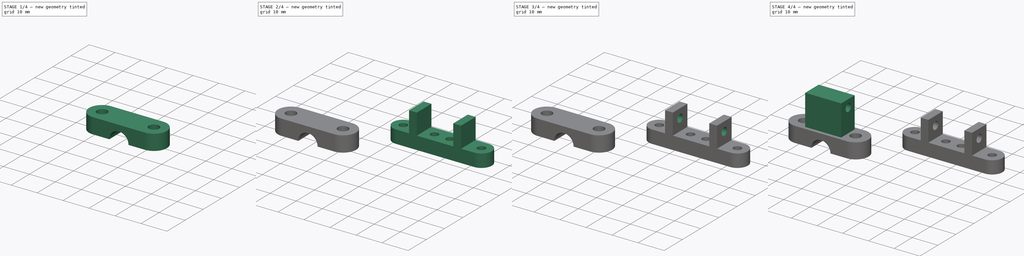
[diagram: build sequence overview — one tinted view per stage of 4, left to right]
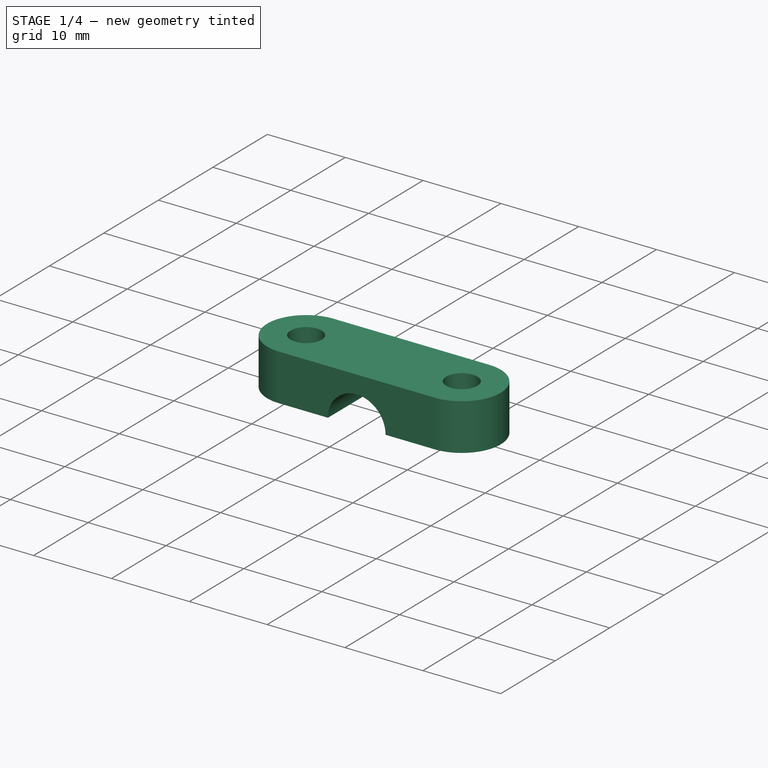
[diagram: stage 1 of 4 — iso view after this stage's code; geometry added in this stage tinted green]
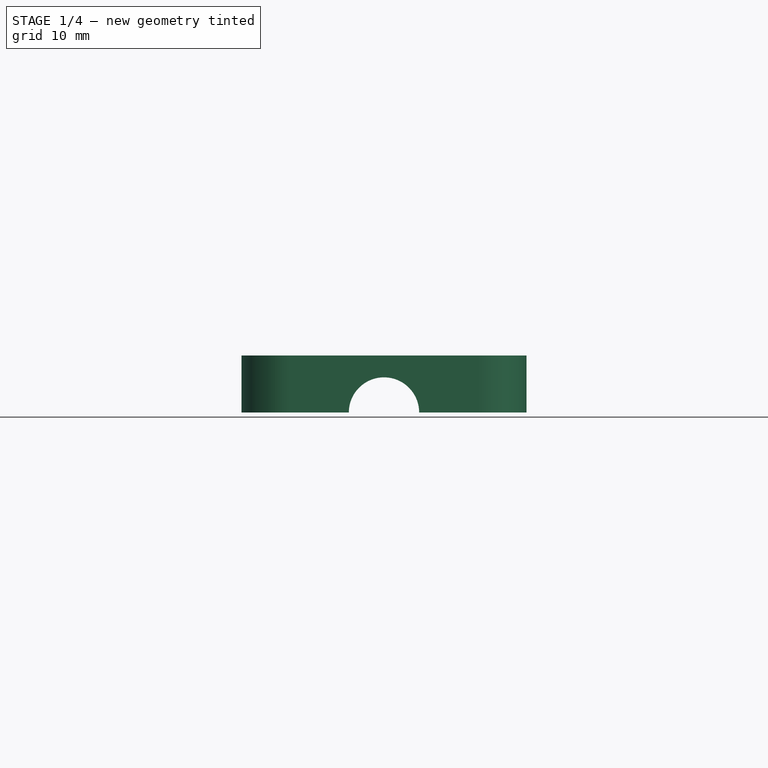
[diagram: stage 1 of 4 — front view after this stage's code; geometry added in this stage tinted green]
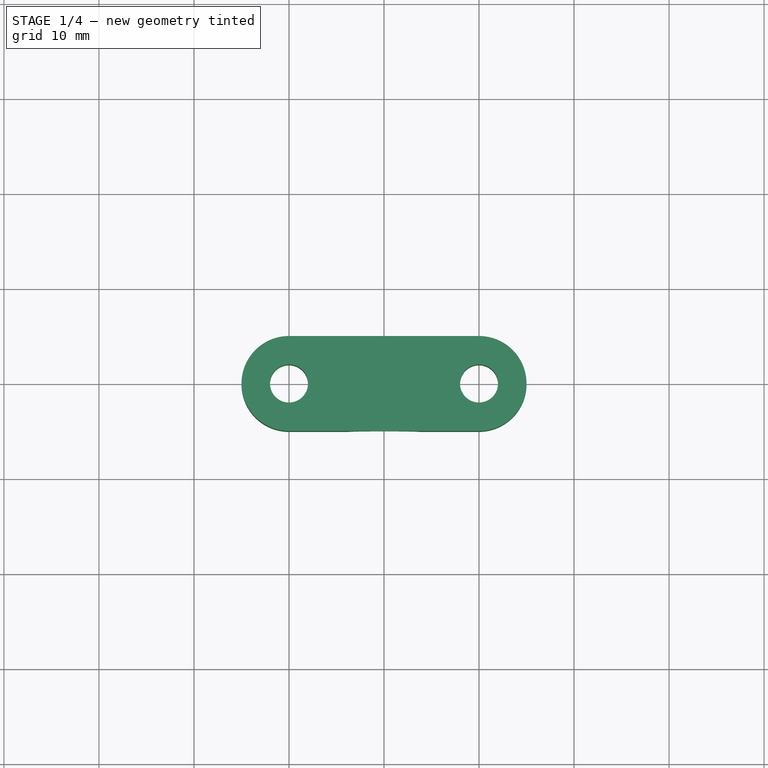
[diagram: stage 1 of 4 — top view after this stage's code; geometry added in this stage tinted green]
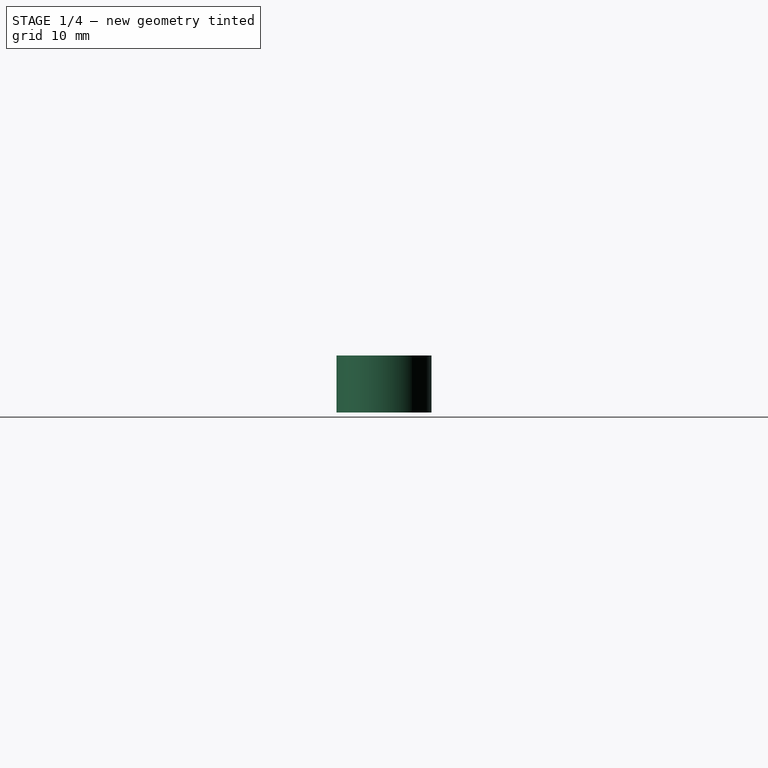
[diagram: stage 1 of 4 — right view after this stage's code; geometry added in this stage tinted green]
FCSTD DOCUMENT  (FreeCAD 0.18R16117 (Git))
Label: AssemblageSupport
License: All rights reserved
LicenseURL: http://en.wikipedia.org/wiki/All_rights_reserved
objects: Sketcher::SketchObject×7, PartDesign::Pad×5, PartDesign::Body×3, PartDesign::SubtractiveCylinder×2, PartDesign::Pocket×2, App::FeaturePython×2
note: 28 computed .brp shape members not serialized (recipe doc carries the construction recipe); baked Part::Feature solids carry a one-line shape summary decoded from their .brp

FEATURE [PartDesign::Body] Body001
  Group = -> [Pad002,Sketch004,Pad003,Sketch005,Pocket001]
  Origin = -> Origin001
  Placement = pos=(-57.8,-17.3,-14) rot=(-1,0,0;0.628319rad)
  Tip = -> Pocket001
FEATURE [App::FeaturePython] circularEdgeConstraint01  # a2plus constraint (typed FeaturePython)
  Object1 = Pocket001
  Object2 = Pocket
  SubElement1 = Edge48
  SubElement2 = Edge31
  Type = circularEdge
  directionConstraint = 0
  lockRotation = false
  offset = 0
FEATURE [App::FeaturePython] planeConstraint01  # a2plus constraint (typed FeaturePython)
  Object1 = Pocket001
  Object2 = Pocket
  SubElement1 = Face16
  SubElement2 = Face10
  Type = plane
  directionConstraint = 0
  offset = 0
FEATURE [Sketcher::SketchObject] Sketch006
  MapMode = 5
  Support = -> [XY_Plane002]
  sketch-geometry (6):
    g0: ArcOfCircle CenterX=0 CenterY=0 CenterZ=0 NormalX=0 NormalY=0 NormalZ=1 AngleXU=0 Radius=5 StartAngle=1.57079 EndAngle=4.71239
    g1: LineSegment StartX=2.93392e-05 StartY=5 StartZ=0 EndX=20 EndY=5 EndZ=0
    g2: LineSegment StartX=9.65121e-06 StartY=-5 StartZ=0 EndX=20 EndY=-5 EndZ=0
    g3: ArcOfCircle CenterX=20 CenterY=-7.67644e-11 CenterZ=0 NormalX=0 NormalY=0 NormalZ=1 AngleXU=0 Radius=5 StartAngle=4.71238 EndAngle=7.85398
    g4: Circle CenterX=0 CenterY=0 CenterZ=0 NormalX=0 NormalY=0 NormalZ=1 AngleXU=0 Radius=2
    g5: Circle CenterX=20 CenterY=-7.67644e-11 CenterZ=0 NormalX=0 NormalY=0 NormalZ=1 AngleXU=0 Radius=2
  constraints (16):
    c: Parallel(g1,g2)
    c: Coincident(g1,g0)
    c: Coincident(g2,g0)
    c: Coincident(g2,g3)
    c: Coincident(g3,g1)
    c: Distance(g1) = 20
    c: Distance(g2) = 20
    c: Radius(g3) = 5
    c: Radius(g0) = 5
    c: DistanceY(g2,g1) = 10
    c: Parallel(g-1,g2)
    c: Radius(g5) = 2
    c: Radius(g4) = 2
    c: Coincident(g-1,g0)
    c: Coincident(g4,g0)
    c: Coincident(g5,g3)
FEATURE [PartDesign::Pad] Pad004
  Length = 6
  Length2 = 100
  Profile = -> Sketch006
  Type = 0
FEATURE [PartDesign::SubtractiveCylinder] Cylinder001
  Angle = 360
  AttacherType = Attacher::AttachEngine3D
  AttachmentOffset = pos=(10,0,-10) rot=(0,0,1;0rad)
  BaseFeature = -> Pad004
  Height = 10
  MapMode = 5
  Placement = pos=(10,5,-2.2e-15) rot=(1,0,0;1.5708rad)
  Radius = 3.7
  Support = -> [Pad004]
FEATURE [PartDesign::Body] Body002
  Group = -> [Sketch006,Pad004,Cylinder001]
  Origin = -> Origin002
  Placement = pos=(-20,0,0) rot=(0,0,1;0rad)
  Tip = -> Cylinder001
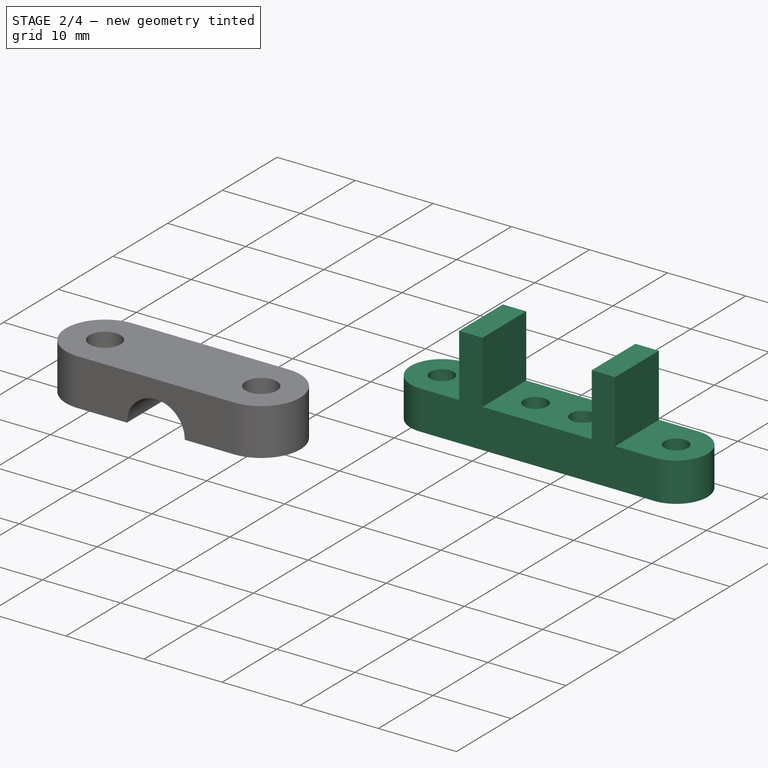
[diagram: stage 2 of 4 — iso view after this stage's code; geometry added in this stage tinted green]
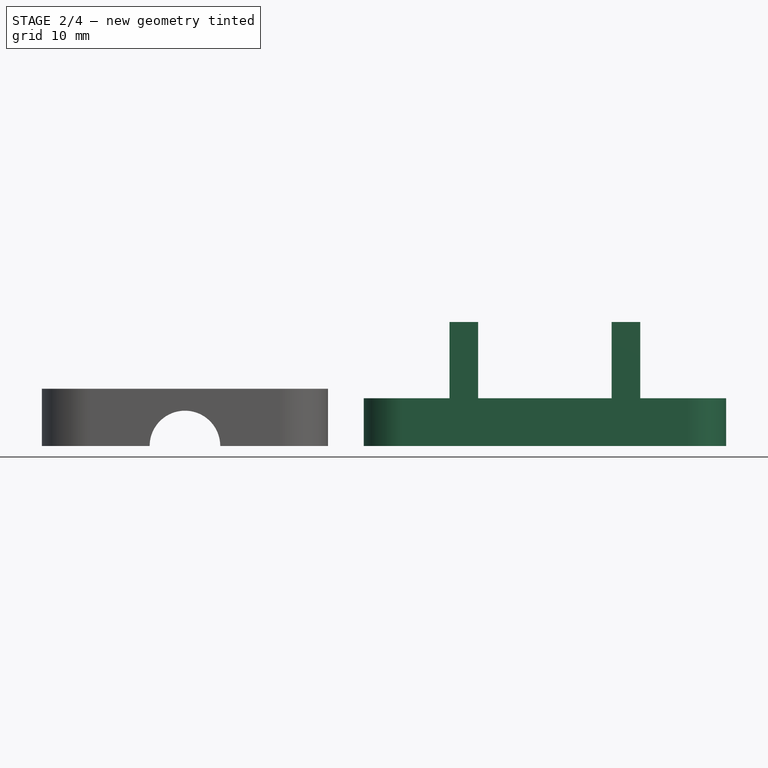
[diagram: stage 2 of 4 — front view after this stage's code; geometry added in this stage tinted green]
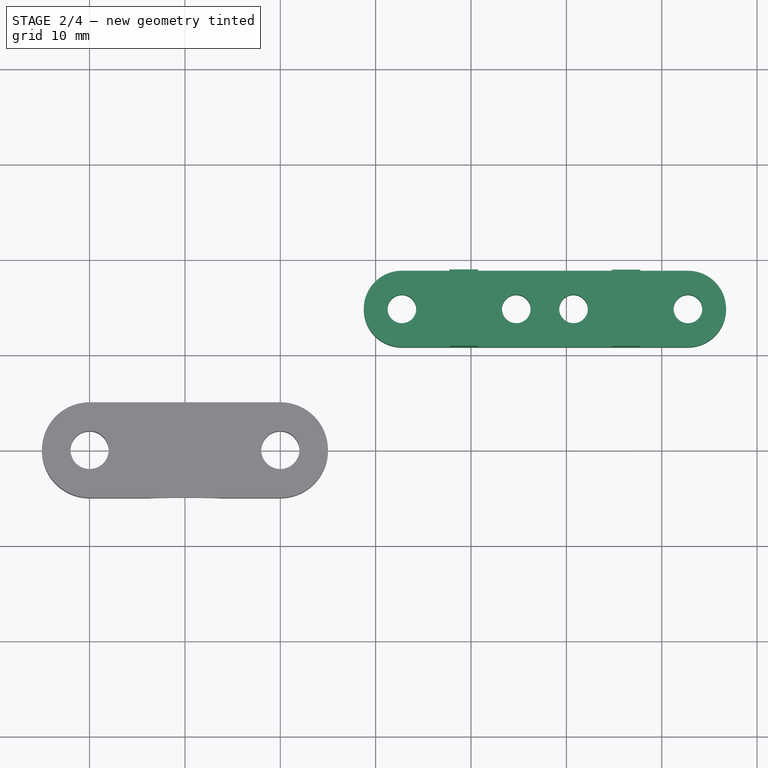
[diagram: stage 2 of 4 — top view after this stage's code; geometry added in this stage tinted green]
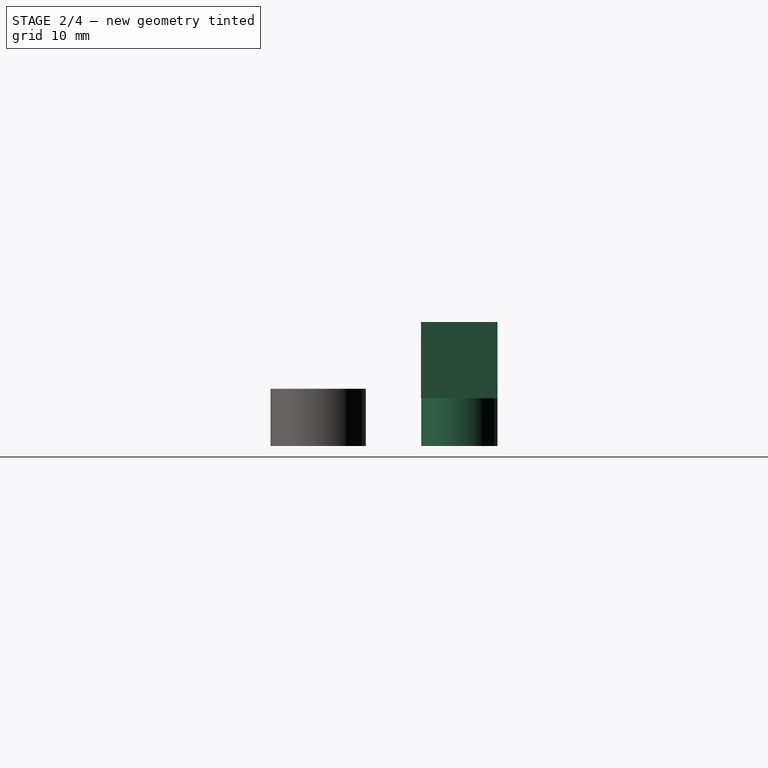
[diagram: stage 2 of 4 — right view after this stage's code; geometry added in this stage tinted green]
FEATURE [PartDesign::Body] Body
  Group = -> [Sketch,Pad,Cylinder,Sketch001,Pad001,Sketch002,Pocket]
  Origin = -> Origin
  Placement = pos=(0,0,0) rot=(0,1,0;3.14159rad)
  Tip = -> Pocket
FEATURE [Sketcher::SketchObject] Sketch003
  sketch-geometry (8):
    g0: LineSegment StartX=32.7502 StartY=18.8125 StartZ=0 EndX=62.7502 EndY=18.8125 EndZ=0
    g1: LineSegment StartX=32.7502 StartY=10.8125 StartZ=0 EndX=62.7502 EndY=10.8125 EndZ=0
    g2: ArcOfCircle CenterX=32.7502 CenterY=14.8125 CenterZ=0 NormalX=0 NormalY=0 NormalZ=1 AngleXU=0 Radius=4 StartAngle=1.5708 EndAngle=4.71239
    g3: ArcOfCircle CenterX=62.7502 CenterY=14.8125 CenterZ=0 NormalX=0 NormalY=0 NormalZ=1 AngleXU=0 Radius=4 StartAngle=4.71239 EndAngle=7.85398
    g4: Circle CenterX=32.7502 CenterY=14.8125 CenterZ=0 NormalX=0 NormalY=0 NormalZ=1 AngleXU=0 Radius=1.5
    g5: Circle CenterX=62.7502 CenterY=14.8125 CenterZ=0 NormalX=0 NormalY=0 NormalZ=1 AngleXU=0 Radius=1.5
    g6: Circle CenterX=50.7502 CenterY=14.8125 CenterZ=0 NormalX=0 NormalY=0 NormalZ=1 AngleXU=0 Radius=1.5
    g7: Circle CenterX=44.7502 CenterY=14.8125 CenterZ=0 NormalX=0 NormalY=0 NormalZ=1 AngleXU=0 Radius=1.5
  constraints (22):
    c: Radius(g2) = 4
    c: Radius(g3) = 4
    c: Distance(g0) = 30
    c: Distance(g1) = 30
    c: Distance(g0,g1) = 8
    c: Distance(g0,g1) = 8
    c: Coincident(g2,g1)
    c: Coincident(g2,g0)
    c: Parallel(g0,g1)
    c: Coincident(g0,g3)
    c: Coincident(g3,g1)
    c: Radius(g4) = 1.5
    c: Radius(g5) = 1.5
    c: Radius(g6) = 1.5
    c: Radius(g7) = 1.5
    c: Distance(g6,g3) = 12
    c: Distance(g7,g2) = 12
    c: Distance(g7,g1) = 4
    c: Distance(g6,g1) = 4
    c: Parallel(g-1,g0)
    c: Coincident(g3,g5)
    c: Coincident(g4,g2)
FEATURE [PartDesign::Pad] Pad002
  Length = 5
  Length2 = 100
  Profile = -> Sketch003
  Type = 0
FEATURE [Sketcher::SketchObject] Sketch004
  ExternalGeometry = -> [Pad002]
  MapMode = 5
  Placement = pos=(0,0,5) rot=(0,0,1;0rad)
  Support = -> [Pad002]
  sketch-geometry (8):
    g0: LineSegment StartX=37.7502 StartY=18.8125 StartZ=0 EndX=40.7502 EndY=18.8125 EndZ=0
    g1: LineSegment StartX=40.7502 StartY=18.8125 StartZ=0 EndX=40.7502 EndY=10.8125 EndZ=0
    g2: LineSegment StartX=40.7502 StartY=10.8125 StartZ=0 EndX=37.7502 EndY=10.8125 EndZ=0
    g3: LineSegment StartX=37.7502 StartY=10.8125 StartZ=0 EndX=37.7502 EndY=18.8125 EndZ=0
    g4: LineSegment StartX=54.7502 StartY=18.7886 StartZ=0 EndX=57.7502 EndY=18.7886 EndZ=0
    g5: LineSegment StartX=57.7502 StartY=18.7886 StartZ=0 EndX=57.7502 EndY=10.7886 EndZ=0
    g6: LineSegment StartX=57.7502 StartY=10.7886 StartZ=0 EndX=54.7502 EndY=10.7886 EndZ=0
    g7: LineSegment StartX=54.7502 StartY=10.7886 StartZ=0 EndX=54.7502 EndY=18.7886 EndZ=0
  constraints (24):
    c: Coincident(g0,g1)
    c: Coincident(g1,g2)
    c: Coincident(g2,g3)
    c: Coincident(g3,g0)
    c: Horizontal(g0)
    c: Horizontal(g2)
    c: Vertical(g1)
    c: Vertical(g3)
    c: Coincident(g4,g5)
    c: Coincident(g5,g6)
    c: Coincident(g6,g7)
    c: Coincident(g7,g4)
    c: Horizontal(g4)
    c: Horizontal(g6)
    c: Vertical(g5)
    c: Vertical(g7)
    c: Distance(g0) = 3
    c: Distance(g4) = 3
    c: Distance(g5) = 8
    c: Distance(g3) = 8
    c: Distance(g0,g4) = 14
    c: Distance(g-4,g7) = 4
    c: Distance(g-3,g1) = 4
    c: Distance(g1,g-5) = 8
FEATURE [PartDesign::Pad] Pad003
  BaseFeature = -> Pad002
  Length = 8
  Length2 = 100
  Profile = -> Sketch004
  Type = 0
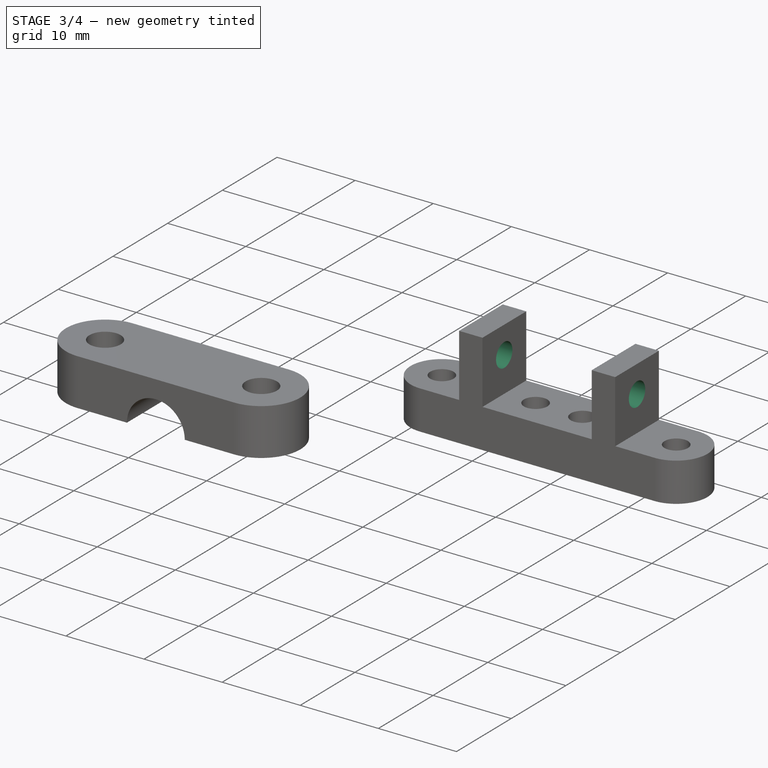
[diagram: stage 3 of 4 — iso view after this stage's code; geometry added in this stage tinted green]
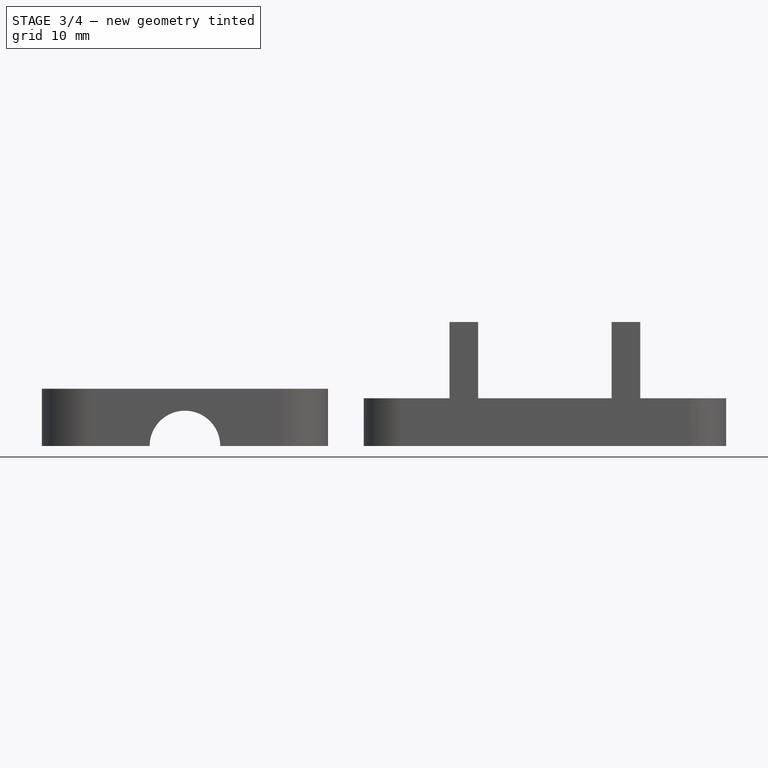
[diagram: stage 3 of 4 — front view after this stage's code; geometry added in this stage tinted green]
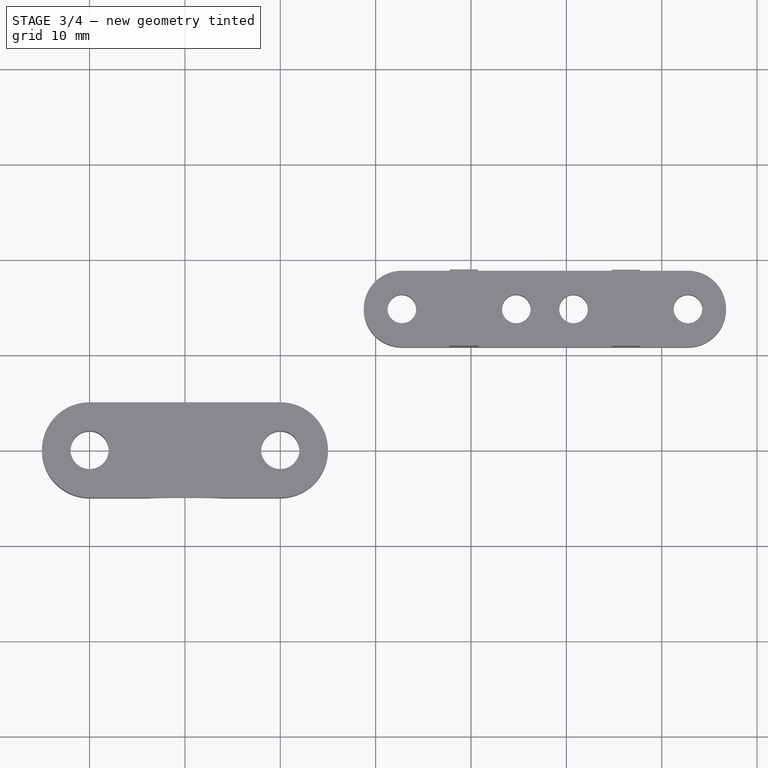
[diagram: stage 3 of 4 — top view after this stage's code; geometry added in this stage tinted green]
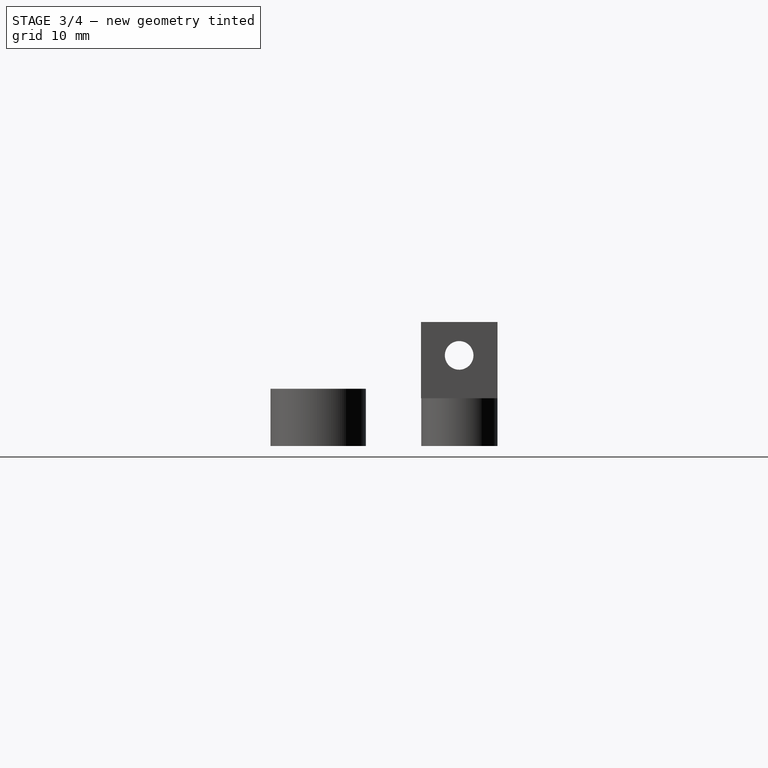
[diagram: stage 3 of 4 — right view after this stage's code; geometry added in this stage tinted green]
FEATURE [Sketcher::SketchObject] Sketch
  MapMode = 5
  Support = -> [XY_Plane]
  sketch-geometry (6):
    g0: ArcOfCircle CenterX=0 CenterY=0 CenterZ=0 NormalX=0 NormalY=0 NormalZ=1 AngleXU=0 Radius=5 StartAngle=1.57079 EndAngle=4.71239
    g1: LineSegment StartX=2.93392e-05 StartY=5 StartZ=0 EndX=20 EndY=5 EndZ=0
    g2: LineSegment StartX=9.65121e-06 StartY=-5 StartZ=0 EndX=20 EndY=-5 EndZ=0
    g3: ArcOfCircle CenterX=20 CenterY=-7.67644e-11 CenterZ=0 NormalX=0 NormalY=0 NormalZ=1 AngleXU=0 Radius=5 StartAngle=4.71238 EndAngle=7.85398
    g4: Circle CenterX=0 CenterY=0 CenterZ=0 NormalX=0 NormalY=0 NormalZ=1 AngleXU=0 Radius=2
    g5: Circle CenterX=20 CenterY=-7.67644e-11 CenterZ=0 NormalX=0 NormalY=0 NormalZ=1 AngleXU=0 Radius=2
  constraints (16):
    c: Parallel(g1,g2)
    c: Coincident(g1,g0)
    c: Coincident(g2,g0)
    c: Coincident(g2,g3)
    c: Coincident(g3,g1)
    c: Distance(g1) = 20
    c: Distance(g2) = 20
    c: Radius(g3) = 5
    c: Radius(g0) = 5
    c: DistanceY(g2,g1) = 10
    c: Parallel(g-1,g2)
    c: Radius(g5) = 2
    c: Radius(g4) = 2
    c: Coincident(g-1,g0)
    c: Coincident(g4,g0)
    c: Coincident(g5,g3)
FEATURE [PartDesign::Pad] Pad
  Length = 6
  Length2 = 100
  Profile = -> Sketch
  Type = 0
FEATURE [PartDesign::SubtractiveCylinder] Cylinder
  Angle = 360
  AttacherType = Attacher::AttachEngine3D
  AttachmentOffset = pos=(10,0,-10) rot=(0,0,1;0rad)
  BaseFeature = -> Pad
  Height = 10
  MapMode = 5
  Placement = pos=(10,5,-2.2e-15) rot=(1,0,0;1.5708rad)
  Radius = 3.7
  Support = -> [Pad]
FEATURE [Sketcher::SketchObject] Sketch005
  ExternalGeometry = -> [Pad003]
  MapMode = 5
  Placement = pos=(57.7502,0,0) rot=(0.57735,0.57735,0.57735;2.0944rad)
  Support = -> [Pad003]
  sketch-geometry (1):
    g0: Circle CenterX=14.7886 CenterY=9.5 CenterZ=0 NormalX=0 NormalY=0 NormalZ=1 AngleXU=0 Radius=1.5
  constraints (3):
    c: Radius(g0) = 1.5
    c: Distance(g0,g-3) = 3.5
    c: Distance(g0,g-5) = 4
FEATURE [PartDesign::Pocket] Pocket001
  BaseFeature = -> Pad003
  Length = 23
  Length2 = 100
  Profile = -> Sketch005
  Type = 0
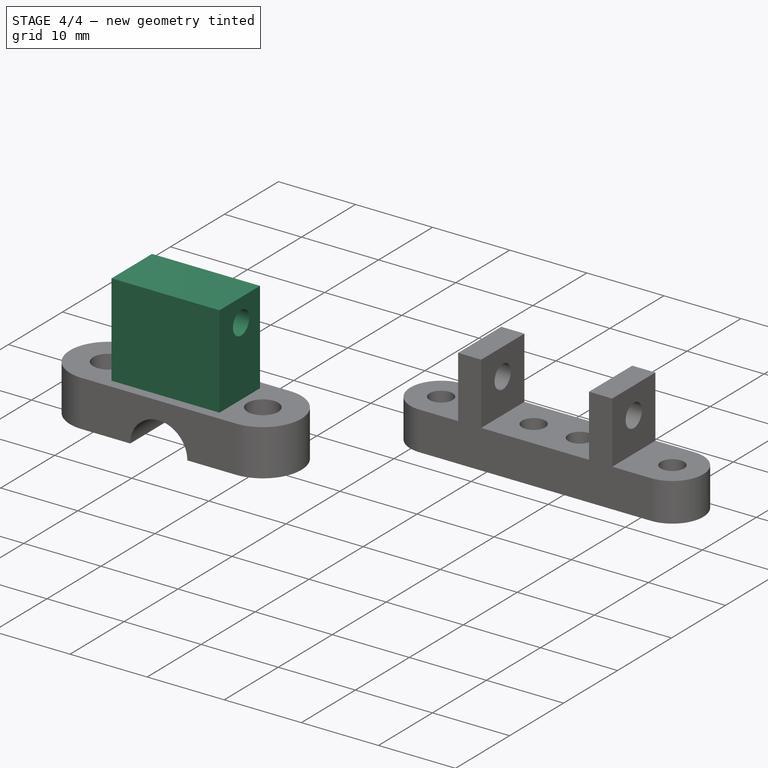
[diagram: stage 4 of 4 — iso view after this stage's code; geometry added in this stage tinted green]
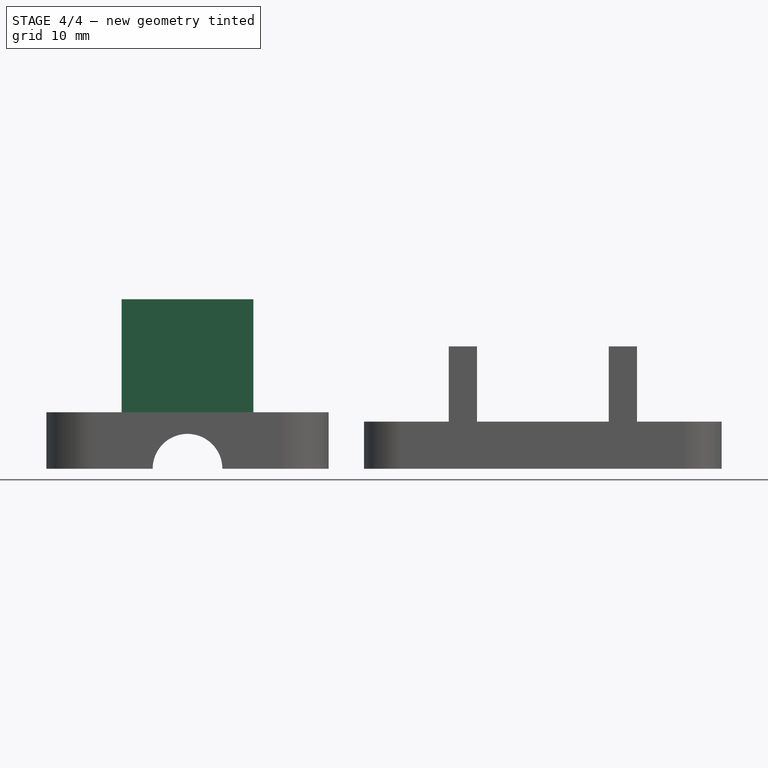
[diagram: stage 4 of 4 — front view after this stage's code; geometry added in this stage tinted green]
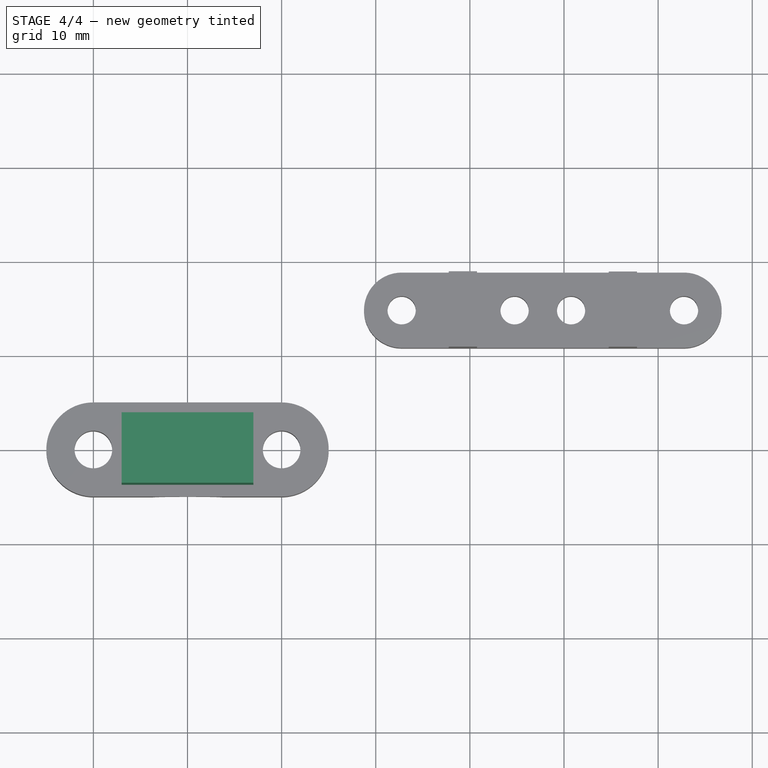
[diagram: stage 4 of 4 — top view after this stage's code; geometry added in this stage tinted green]
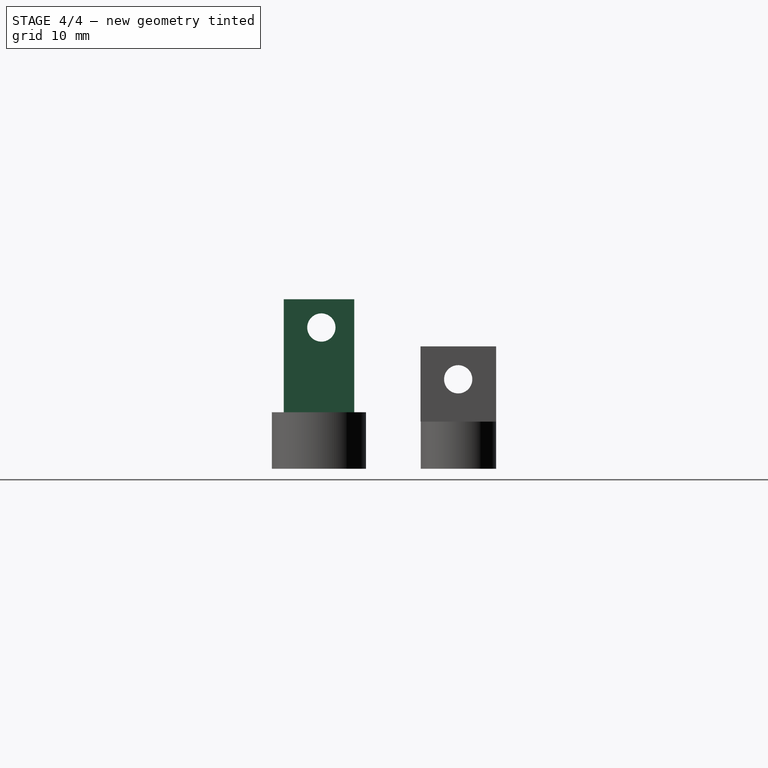
[diagram: stage 4 of 4 — right view after this stage's code; geometry added in this stage tinted green]
FEATURE [Sketcher::SketchObject] Sketch001
  MapMode = 5
  Placement = pos=(10,5,6) rot=(0,0,1;3.14159rad)
  Support = -> [Cylinder]
  sketch-geometry (4):
    g0: LineSegment StartX=-7 StartY=8.75 StartZ=0 EndX=7 EndY=8.75 EndZ=0
    g1: LineSegment StartX=7 StartY=8.75 StartZ=0 EndX=7 EndY=1.25 EndZ=0
    g2: LineSegment StartX=7 StartY=1.25 StartZ=0 EndX=-7 EndY=1.25 EndZ=0
    g3: LineSegment StartX=-7 StartY=1.25 StartZ=0 EndX=-7 EndY=8.75 EndZ=0
  constraints (12):
    c: Coincident(g0,g1)
    c: Coincident(g1,g2)
    c: Coincident(g2,g3)
    c: Coincident(g3,g0)
    c: Horizontal(g0)
    c: Horizontal(g2)
    c: Vertical(g1)
    c: Vertical(g3)
    c: Distance(g1) = 7.5
    c: Distance(g0) = 14
    c: Distance(g1,g-1) = 1.25
    c: Distance(g1,g-2) = 7
FEATURE [PartDesign::Pad] Pad001
  BaseFeature = -> Cylinder
  Length = 12
  Length2 = 100
  Placement = pos=(10,5,-2.2e-15) rot=(1,0,0;1.5708rad)
  Profile = -> Sketch001
  Type = 0
FEATURE [Sketcher::SketchObject] Sketch002
  ExternalGeometry = -> [Pad001]
  MapMode = 5
  Placement = pos=(17,5,-2.2e-15) rot=(0.707107,0,0.707107;3.14159rad)
  Support = -> [Pad001]
  sketch-geometry (1):
    g0: Circle CenterX=15 CenterY=4.75 CenterZ=0 NormalX=0 NormalY=0 NormalZ=1 AngleXU=0 Radius=1.5
  constraints (3):
    c: Radius(g0) = 1.5
    c: Distance(g0,g-3) = 3
    c: Distance(g0,g-4) = 3.5
FEATURE [PartDesign::Pocket] Pocket
  BaseFeature = -> Pad001
  Length = 14
  Length2 = 100
  Placement = pos=(10,5,-2.2e-15) rot=(1,0,0;1.5708rad)
  Profile = -> Sketch002
  Type = 0
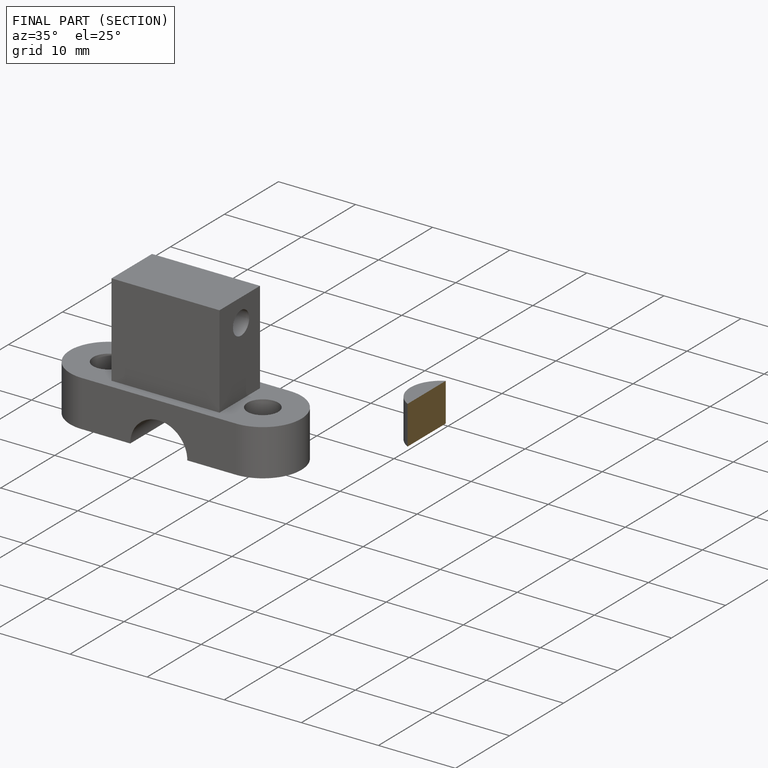
[diagram: finished part — half-section view (interior)]
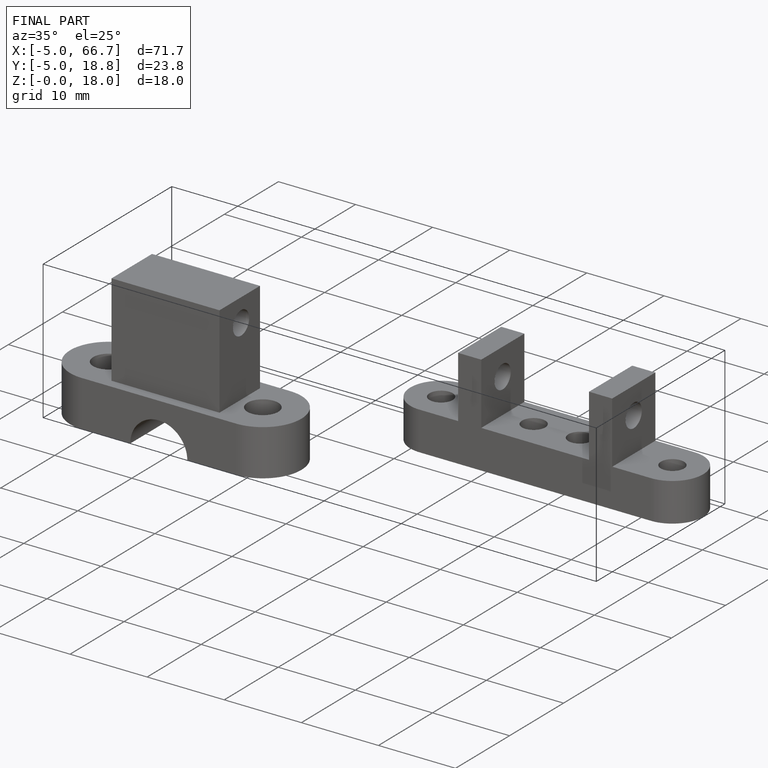
[diagram: finished part — iso view with bounding-box wireframe]
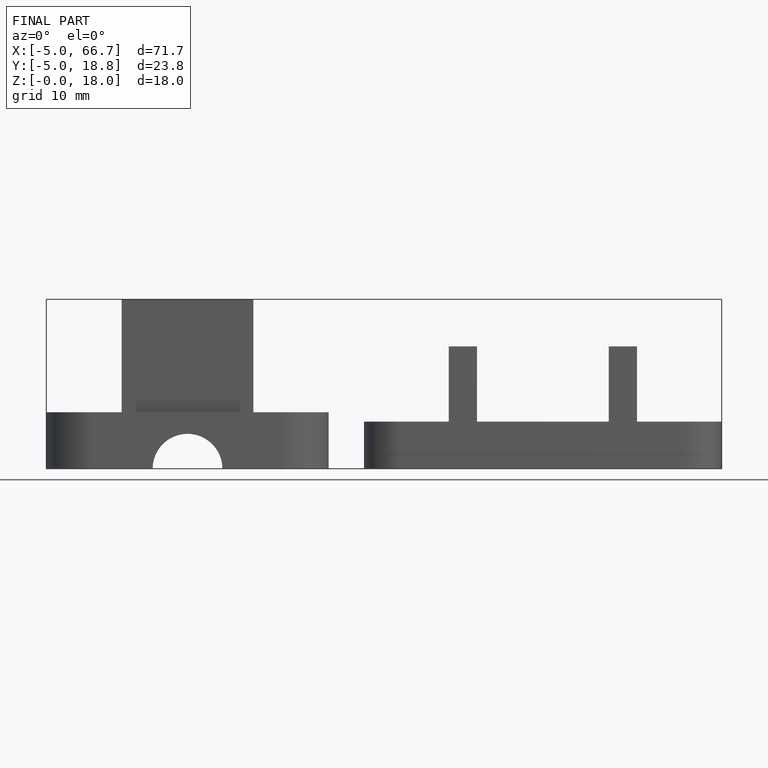
[diagram: finished part — front view with bounding-box wireframe]
